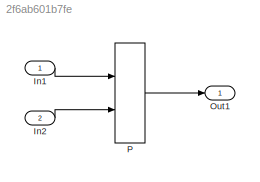
MODEL slx_2f6ab601b7fe
KIND model
CONFIG AbsTol = auto
CONFIG EnableMultiTasking = off
CONFIG FixedStep = auto
CONFIG MaxStep = auto
CONFIG MinStep = auto
CONFIG RelTol = 1e-3
CONFIG SampleTimeConstraint = Unconstrained
CONFIG Solver = FixedStepDiscrete
CONFIG SolverName = FixedStepDiscrete
CONFIG StartTime = 0.0
CONFIG StopTime = 10.0
BLOCK [Inport] In1
  IconDisplay = Port number
  OutMax = 127
  OutMin = 0
  PortDimensions = 1
BLOCK [Inport] In2
  IconDisplay = Port number
  OutMax = 127
  OutMin = 0
  Port = 2
BLOCK [Outport] Out1
  IconDisplay = Port number
BLOCK [Lookup_n-D] P
  BreakpointsForDimension1FirstPoint = 98.5339
  BreakpointsForDimension1Spacing = 1.5
  BreakpointsForDimension2FirstPoint = 43.4364
  BreakpointsForDimension2Spacing = 1.5
  BreakpointsForDimension3 = [5, 7]
  BreakpointsSpecification = Even spacing
  InternalRulePriority = Speed
  InterpMethod = Nearest
  Ports = [2, 1]
  RndMeth = Simplest
  Table = [26.9005521905258 112.856955016157 68.6313712874465 80.8996589168532 6.44963447646773;115.151081273799 73.0314403294116 108.286831110151 90.4851694546768 58.3363611701358;51.4534545578266 2.12211651689023 28.2678509149225 42.3837561494596 109.932493566839]
LINE In1:1 -> P:1
LINE In2:1 -> P:2
LINE P:1 -> Out1:1
